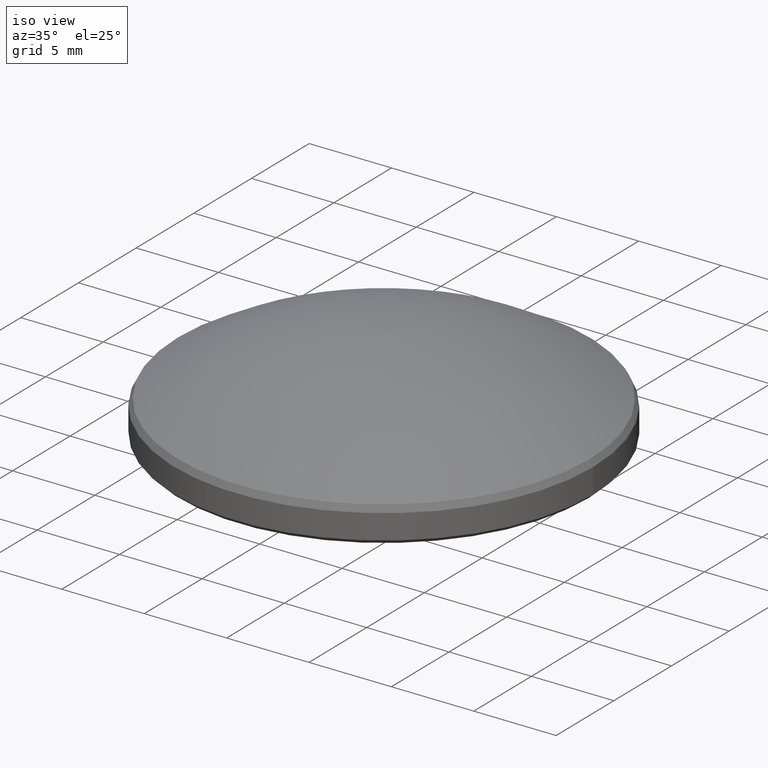
[diagram: clean part render]
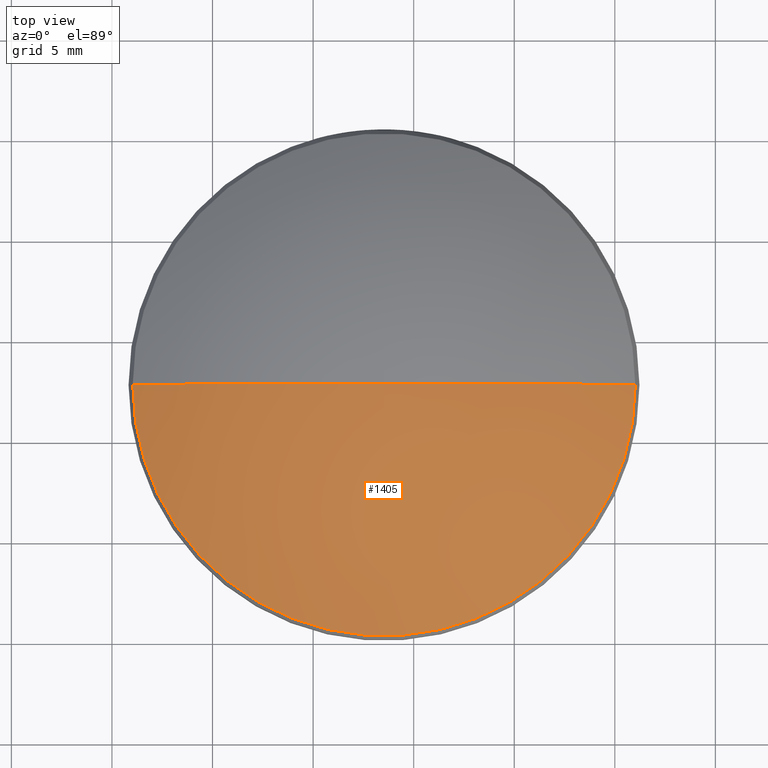
[diagram: tour spotlight — one face highlighted and labeled with its STEP entity id]
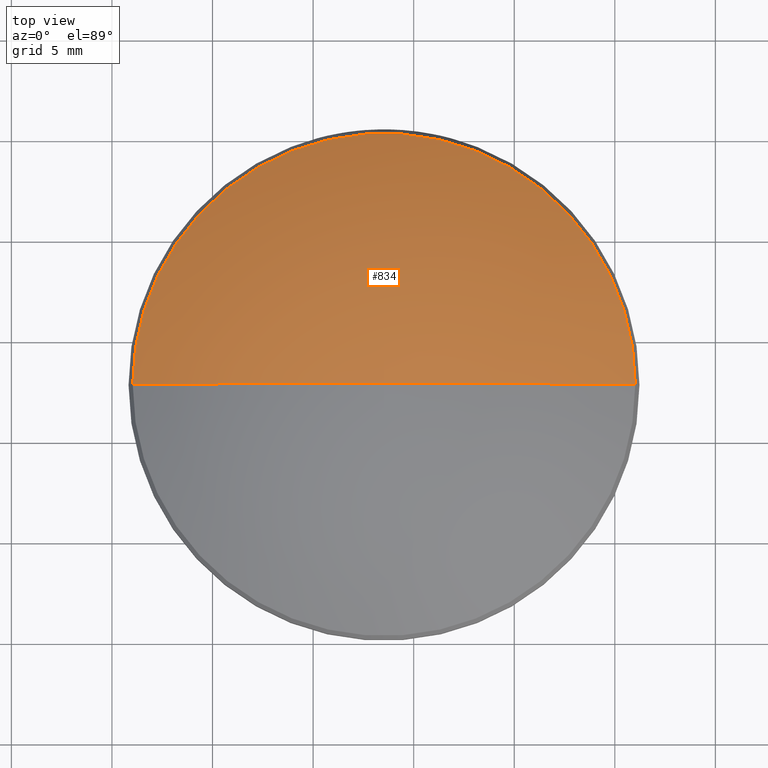
[diagram: tour spotlight — one face highlighted and labeled with its STEP entity id]
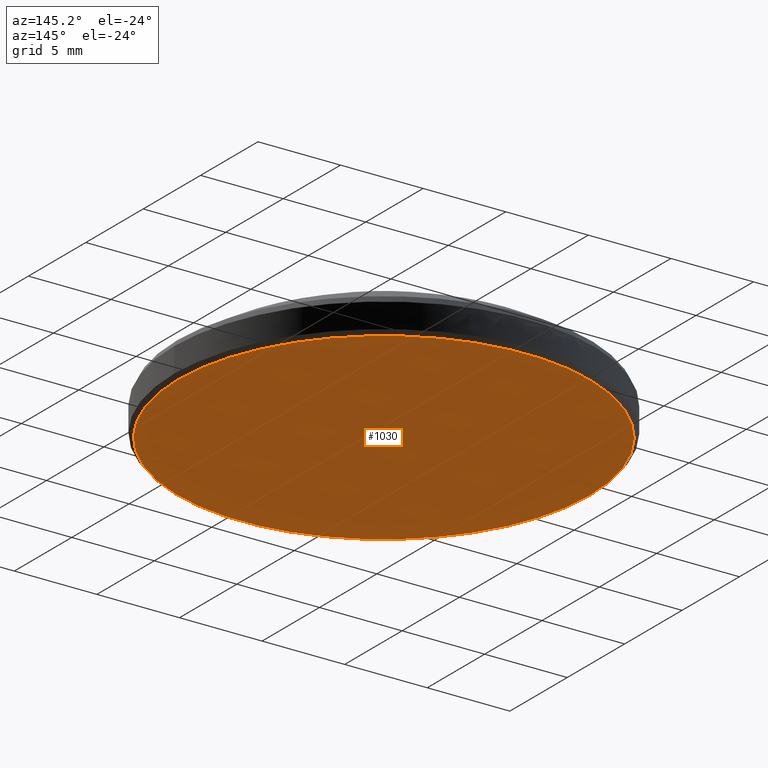
[diagram: tour spotlight — one face highlighted and labeled with its STEP entity id]
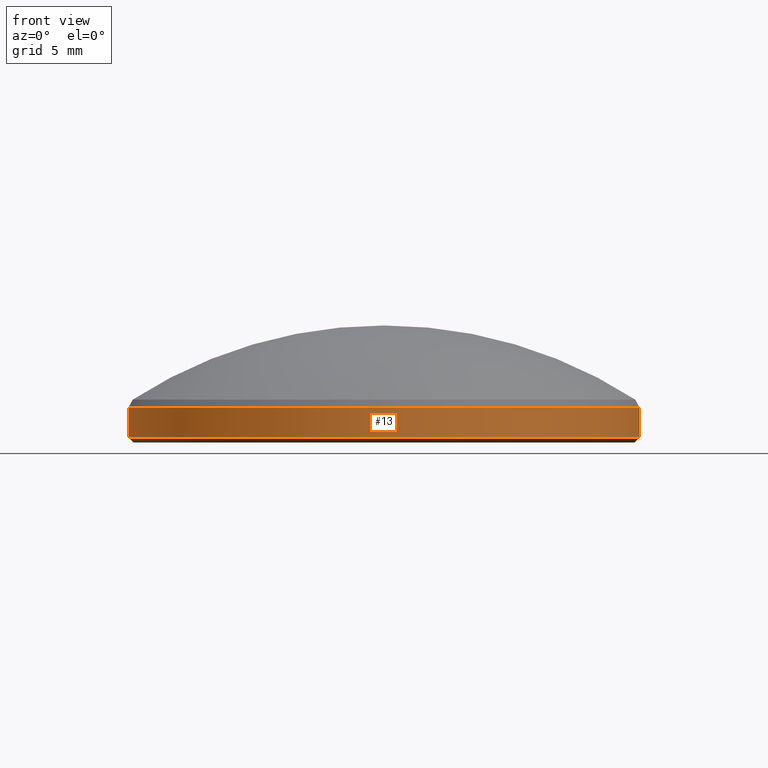
[diagram: tour spotlight — one face highlighted and labeled with its STEP entity id]
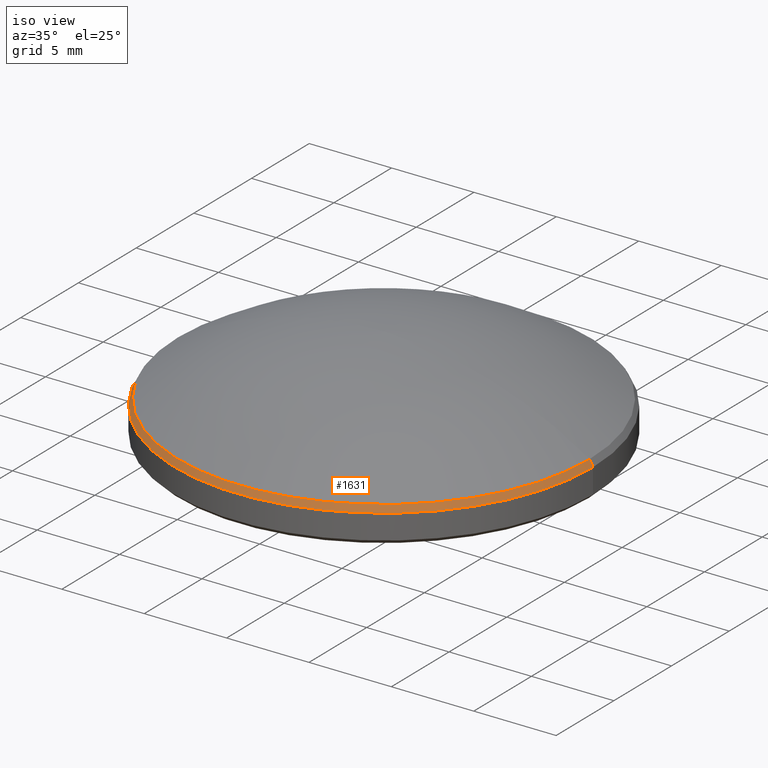
[diagram: tour spotlight — one face highlighted and labeled with its STEP entity id]
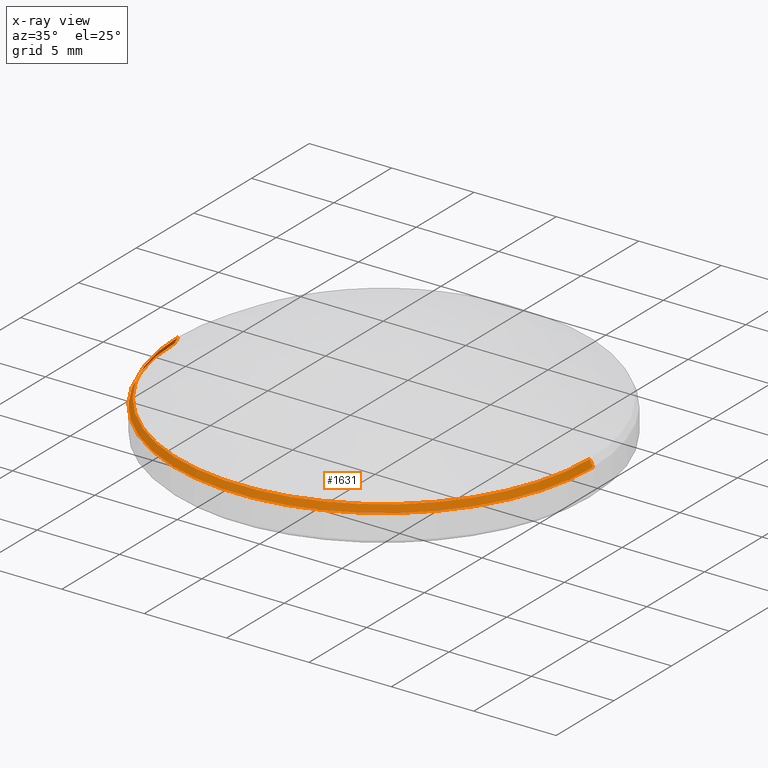
[diagram: x-ray of the same camera — body ghosted, this tour face saturated]
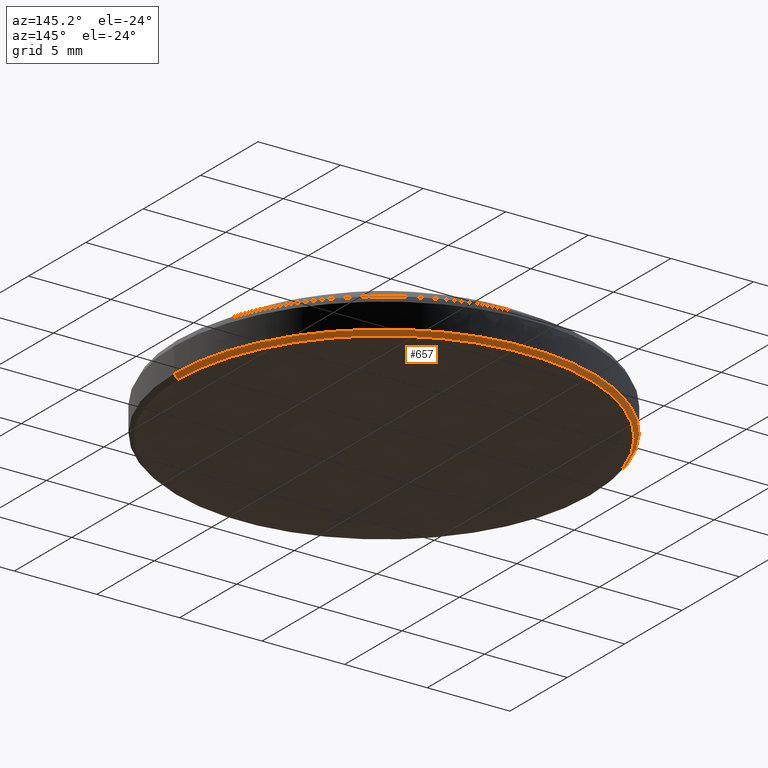
[diagram: tour spotlight — one face highlighted and labeled with its STEP entity id]
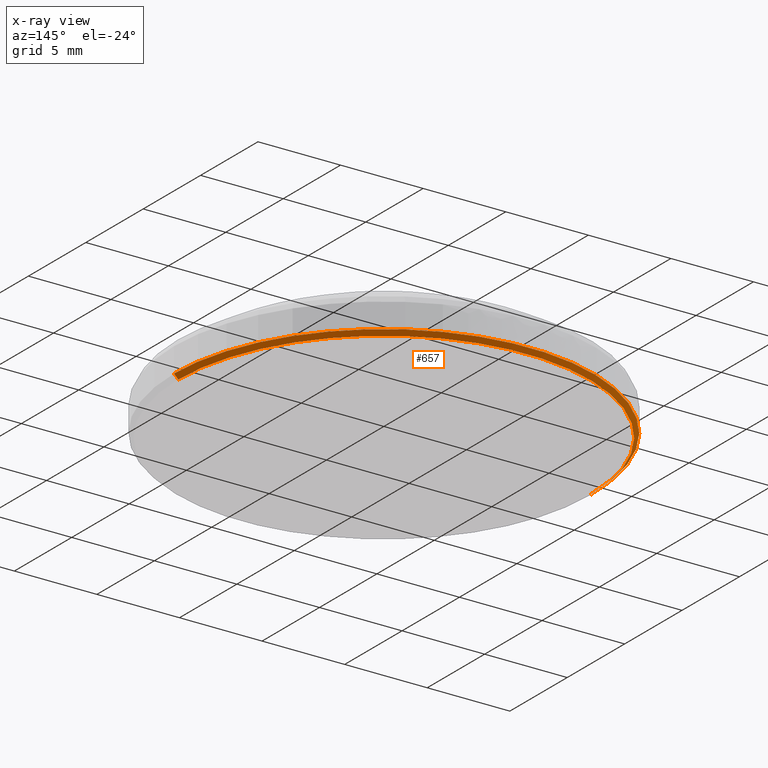
[diagram: x-ray of the same camera — body ghosted, this tour face saturated]
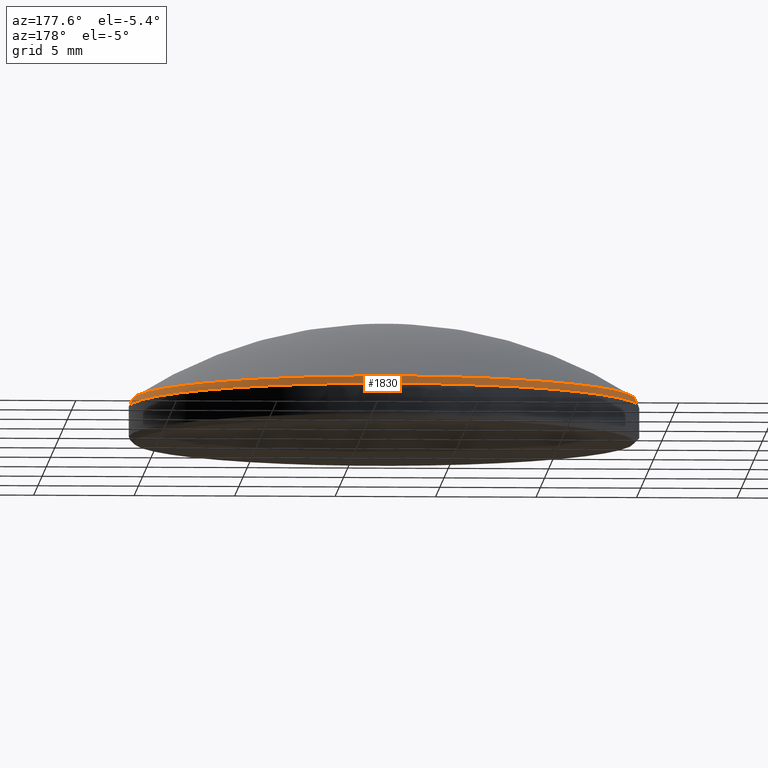
[diagram: tour spotlight — one face highlighted and labeled with its STEP entity id]
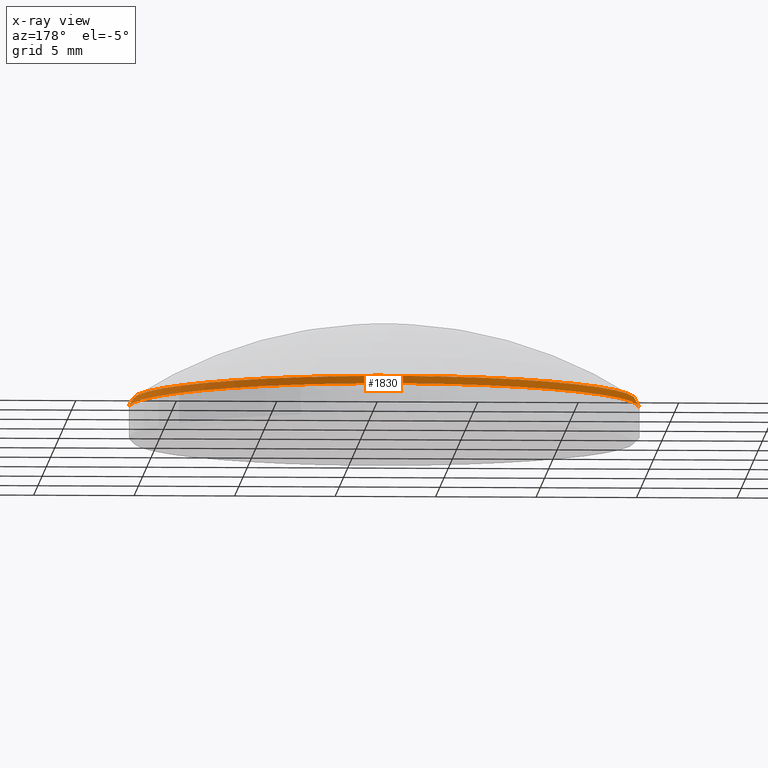
[diagram: x-ray of the same camera — body ghosted, this tour face saturated]
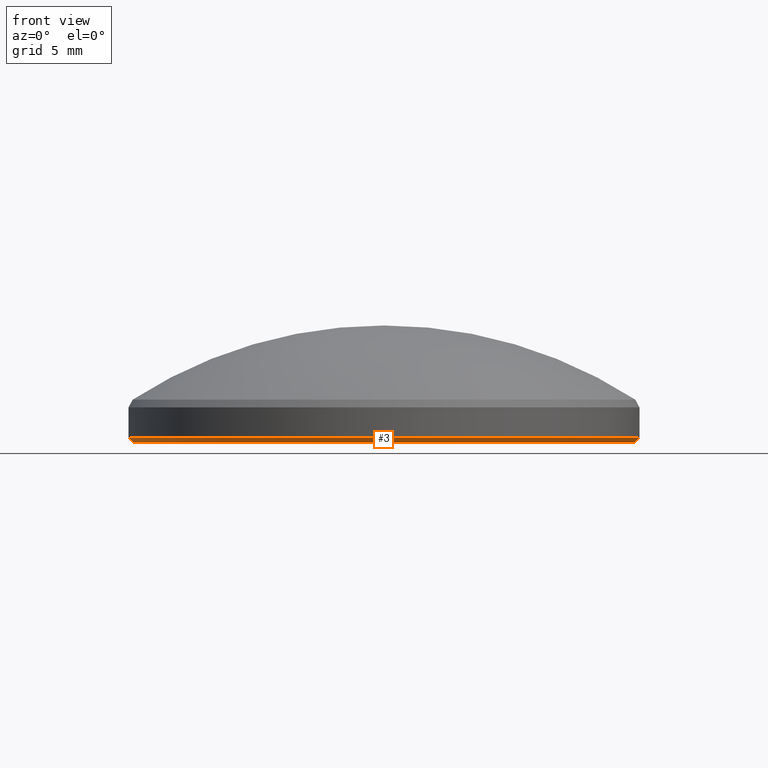
[diagram: tour spotlight — one face highlighted and labeled with its STEP entity id]
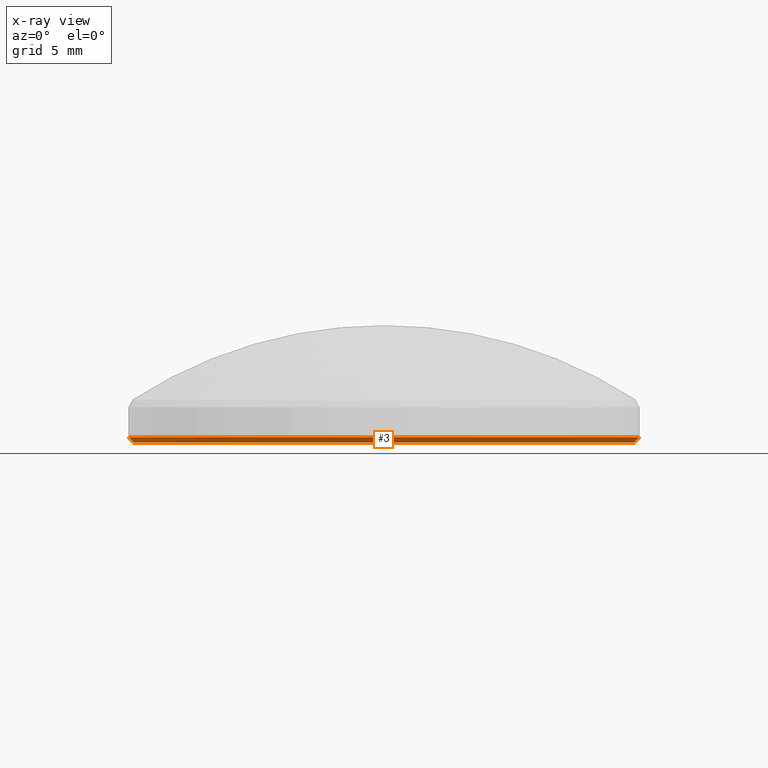
[diagram: x-ray of the same camera — body ghosted, this tour face saturated]
A machine part: a face-by-face anatomy tour. The part has 26 B-rep faces; the first image is the clean iso view, then the 8 largest visible faces are spotlighted one at a time (largest first), each with its STEP entity span.

Face 1 — top view, entity #1405. In plain terms, the highlighted toroidal blend (fillet) surface has major radius 0.0064 mm and minor (blend) radius 23 mm.
Definition (entity closure, byte-faithful):
#120 = DIRECTION ( 'NONE',  ( -1.000000000000000000, 0.0000000000000000000, 0.0000000000000000000 ) ) ;
#137 = DIRECTION ( 'NONE',  ( -1.000000000000000000, 0.0000000000000000000, 0.0000000000000000000 ) ) ;
#165 = CARTESIAN_POINT ( 'NONE',  ( -0.05807175789304482721, 0.9004964437075525518, 1.005609773778499916 ) ) ;
#221 = ORIENTED_EDGE ( 'NONE', *, *, #1796, .F. ) ;
#339 = DIRECTION ( 'NONE',  ( -0.0000000000000000000, -0.0000000000000000000, -1.000000000000000000 ) ) ;
#353 = EDGE_CURVE ( 'NONE', #1370, #1394, #1599, .T. ) ;
#531 = CARTESIAN_POINT ( 'NONE',  ( -0.05807175789304482721, 0.9004964437075525518, 0.1000979977453171077 ) ) ;
#560 = DIRECTION ( 'NONE',  ( -1.000000000000000000, -1.508455196501571676E-16, 0.0000000000000000000 ) ) ;
#617 = FACE_OUTER_BOUND ( 'NONE', #985, .T. ) ;
#700 = CARTESIAN_POINT ( 'NONE',  ( 0.4337728749540302187, 0.9004964437075525518, 0.8605505332690688292 ) ) ;
#726 = CARTESIAN_POINT ( 'NONE',  ( -0.5499163907401198870, 0.9004964437075525518, 0.8605505332690688292 ) ) ;
#804 = TOROIDAL_SURFACE ( 'NONE', #1527, 0.0002517310281242341082, 0.9055118110236218820 ) ;
#985 = EDGE_LOOP ( 'NONE', ( #221, #1212, #1283 ) ) ;
#1104 = AXIS2_PLACEMENT_3D ( 'NONE', #2614, #2197, #560 ) ;
#1212 = ORIENTED_EDGE ( 'NONE', *, *, #2014, .T. ) ;
#1283 = ORIENTED_EDGE ( 'NONE', *, *, #353, .T. ) ;
#1290 = DIRECTION ( 'NONE',  ( 0.0000000000000000000, -1.000000000000000000, 0.0000000000000000000 ) ) ;
#1370 = VERTEX_POINT ( 'NONE', #726 ) ;
#1394 = VERTEX_POINT ( 'NONE', #700 ) ;
#1405 = ADVANCED_FACE ( 'NONE', ( #617 ), #804, .T. ) ;
#1453 = AXIS2_PLACEMENT_3D ( 'NONE', #2587, #1775, #137 ) ;
#1462 = CIRCLE ( 'NONE', #1104, 0.9055118110236218820 ) ;
#1527 = AXIS2_PLACEMENT_3D ( 'NONE', #531, #339, #120 ) ;
#1599 = CIRCLE ( 'NONE', #1453, 0.4918446328470749696 ) ;
#1730 = AXIS2_PLACEMENT_3D ( 'NONE', #2278, #1290, #1920 ) ;
#1775 = DIRECTION ( 'NONE',  ( 0.0000000000000000000, 0.0000000000000000000, 1.000000000000000000 ) ) ;
#1776 = CIRCLE ( 'NONE', #1730, 0.9055118110236218820 ) ;
#1796 = EDGE_CURVE ( 'NONE', #2363, #1394, #1462, .T. ) ;
#1920 = DIRECTION ( 'NONE',  ( 0.0000000000000000000, 0.0000000000000000000, -1.000000000000000000 ) ) ;
#2014 = EDGE_CURVE ( 'NONE', #2363, #1370, #1776, .T. ) ;
#2197 = DIRECTION ( 'NONE',  ( -1.224646799147353207E-16, 1.000000000000000000, 0.0000000000000000000 ) ) ;
#2278 = CARTESIAN_POINT ( 'NONE',  ( -0.05832348892116905742, 0.9004964437075525518, 0.1000979977453171077 ) ) ;
#2363 = VERTEX_POINT ( 'NONE', #165 ) ;
#2587 = CARTESIAN_POINT ( 'NONE',  ( -0.05807175789304482721, 0.9004964437075525518, 0.8605505332690688292 ) ) ;
#2614 = CARTESIAN_POINT ( 'NONE',  ( -0.05782002686492059007, 0.9004964437075525518, 0.1000979977453171077 ) ) ;

Face 2 — top view, entity #834. In plain terms, the highlighted toroidal blend (fillet) surface has major radius 0.0064 mm and minor (blend) radius 23 mm.
Definition (entity closure, byte-faithful):
#34 = FACE_OUTER_BOUND ( 'NONE', #1401, .T. ) ;
#42 = DIRECTION ( 'NONE',  ( -1.000000000000000000, 0.0000000000000000000, 0.0000000000000000000 ) ) ;
#102 = ORIENTED_EDGE ( 'NONE', *, *, #2014, .F. ) ;
#165 = CARTESIAN_POINT ( 'NONE',  ( -0.05807175789304482721, 0.9004964437075525518, 1.005609773778499916 ) ) ;
#176 = DIRECTION ( 'NONE',  ( -1.000000000000000000, 0.0000000000000000000, 0.0000000000000000000 ) ) ;
#304 = CARTESIAN_POINT ( 'NONE',  ( -0.05807175789304482721, 0.9004964437075525518, 0.1000979977453171077 ) ) ;
#355 = ORIENTED_EDGE ( 'NONE', *, *, #2635, .T. ) ;
#402 = CIRCLE ( 'NONE', #585, 0.4918446328470749696 ) ;
#560 = DIRECTION ( 'NONE',  ( -1.000000000000000000, -1.508455196501571676E-16, 0.0000000000000000000 ) ) ;
#585 = AXIS2_PLACEMENT_3D ( 'NONE', #1058, #2496, #42 ) ;
#700 = CARTESIAN_POINT ( 'NONE',  ( 0.4337728749540302187, 0.9004964437075525518, 0.8605505332690688292 ) ) ;
#726 = CARTESIAN_POINT ( 'NONE',  ( -0.5499163907401198870, 0.9004964437075525518, 0.8605505332690688292 ) ) ;
#834 = ADVANCED_FACE ( 'NONE', ( #34 ), #1718, .T. ) ;
#845 = AXIS2_PLACEMENT_3D ( 'NONE', #304, #2013, #176 ) ;
#1058 = CARTESIAN_POINT ( 'NONE',  ( -0.05807175789304482721, 0.9004964437075525518, 0.8605505332690688292 ) ) ;
#1104 = AXIS2_PLACEMENT_3D ( 'NONE', #2614, #2197, #560 ) ;
#1146 = ORIENTED_EDGE ( 'NONE', *, *, #1796, .T. ) ;
#1290 = DIRECTION ( 'NONE',  ( 0.0000000000000000000, -1.000000000000000000, 0.0000000000000000000 ) ) ;
#1370 = VERTEX_POINT ( 'NONE', #726 ) ;
#1394 = VERTEX_POINT ( 'NONE', #700 ) ;
#1401 = EDGE_LOOP ( 'NONE', ( #102, #1146, #355 ) ) ;
#1462 = CIRCLE ( 'NONE', #1104, 0.9055118110236218820 ) ;
#1718 = TOROIDAL_SURFACE ( 'NONE', #845, 0.0002517310281242341082, 0.9055118110236218820 ) ;
#1730 = AXIS2_PLACEMENT_3D ( 'NONE', #2278, #1290, #1920 ) ;
#1776 = CIRCLE ( 'NONE', #1730, 0.9055118110236218820 ) ;
#1796 = EDGE_CURVE ( 'NONE', #2363, #1394, #1462, .T. ) ;
#1920 = DIRECTION ( 'NONE',  ( 0.0000000000000000000, 0.0000000000000000000, -1.000000000000000000 ) ) ;
#2013 = DIRECTION ( 'NONE',  ( -0.0000000000000000000, -0.0000000000000000000, -1.000000000000000000 ) ) ;
#2014 = EDGE_CURVE ( 'NONE', #2363, #1370, #1776, .T. ) ;
#2197 = DIRECTION ( 'NONE',  ( -1.224646799147353207E-16, 1.000000000000000000, 0.0000000000000000000 ) ) ;
#2278 = CARTESIAN_POINT ( 'NONE',  ( -0.05832348892116905742, 0.9004964437075525518, 0.1000979977453171077 ) ) ;
#2363 = VERTEX_POINT ( 'NONE', #165 ) ;
#2496 = DIRECTION ( 'NONE',  ( 0.0000000000000000000, 0.0000000000000000000, 1.000000000000000000 ) ) ;
#2614 = CARTESIAN_POINT ( 'NONE',  ( -0.05782002686492059007, 0.9004964437075525518, 0.1000979977453171077 ) ) ;
#2635 = EDGE_CURVE ( 'NONE', #1394, #1370, #402, .T. ) ;

Face 3 — auxiliary view, entity #1030. In plain terms, the highlighted planar face has unit normal (-0, 0, -1).
Definition (entity closure, byte-faithful):
#118 = AXIS2_PLACEMENT_3D ( 'NONE', #836, #2471, #1039 ) ;
#208 = PLANE ( 'NONE',  #337 ) ;
#305 = DIRECTION ( 'NONE',  ( -1.000000000000000000, 0.0000000000000000000, 0.0000000000000000000 ) ) ;
#337 = AXIS2_PLACEMENT_3D ( 'NONE', #1028, #1815, #2030 ) ;
#527 = DIRECTION ( 'NONE',  ( -0.0000000000000000000, -0.0000000000000000000, -1.000000000000000000 ) ) ;
#651 = CIRCLE ( 'NONE', #118, 0.4901574803149607029 ) ;
#824 = VERTEX_POINT ( 'NONE', #1152 ) ;
#836 = CARTESIAN_POINT ( 'NONE',  ( -0.05807175789304482721, 0.9004964437075525518, 0.7764759155107834321 ) ) ;
#959 = EDGE_CURVE ( 'NONE', #824, #2475, #651, .T. ) ;
#1028 = CARTESIAN_POINT ( 'NONE',  ( -0.05807175789304482721, 1.400496443707552441, 0.7764759155107834321 ) ) ;
#1030 = ADVANCED_FACE ( 'NONE', ( #1189 ), #208, .T. ) ;
#1039 = DIRECTION ( 'NONE',  ( -1.000000000000000000, 0.0000000000000000000, 0.0000000000000000000 ) ) ;
#1117 = ORIENTED_EDGE ( 'NONE', *, *, #959, .T. ) ;
#1152 = CARTESIAN_POINT ( 'NONE',  ( 0.4320857224219158410, 0.9004964437075525518, 0.7764759155107834321 ) ) ;
#1189 = FACE_OUTER_BOUND ( 'NONE', #2349, .T. ) ;
#1473 = CARTESIAN_POINT ( 'NONE',  ( -0.5482292382080055093, 0.9004964437075525518, 0.7764759155107834321 ) ) ;
#1682 = AXIS2_PLACEMENT_3D ( 'NONE', #2380, #527, #305 ) ;
#1815 = DIRECTION ( 'NONE',  ( -0.0000000000000000000, 0.0000000000000000000, -1.000000000000000000 ) ) ;
#1970 = CIRCLE ( 'NONE', #1682, 0.4901574803149607029 ) ;
#2030 = DIRECTION ( 'NONE',  ( -1.000000000000000000, 0.0000000000000000000, 0.0000000000000000000 ) ) ;
#2221 = EDGE_CURVE ( 'NONE', #2475, #824, #1970, .T. ) ;
#2349 = EDGE_LOOP ( 'NONE', ( #1117, #2430 ) ) ;
#2380 = CARTESIAN_POINT ( 'NONE',  ( -0.05807175789304482721, 0.9004964437075525518, 0.7764759155107834321 ) ) ;
#2430 = ORIENTED_EDGE ( 'NONE', *, *, #2221, .T. ) ;
#2471 = DIRECTION ( 'NONE',  ( -0.0000000000000000000, -0.0000000000000000000, -1.000000000000000000 ) ) ;
#2475 = VERTEX_POINT ( 'NONE', #1473 ) ;

Face 4 — front view, entity #13. In plain terms, the highlighted cylindrical surface (partial cylindrical patch) has radius 12.7 mm, axis along (-0, -0, -1).
Definition (entity closure, byte-faithful):
#13 = ADVANCED_FACE ( 'NONE', ( #963 ), #1925, .T. ) ;
#33 = VERTEX_POINT ( 'NONE', #1535 ) ;
#35 = CARTESIAN_POINT ( 'NONE',  ( -0.05807175789304482721, 0.9004964437075525518, 0.8453735533060587892 ) ) ;
#105 = VERTEX_POINT ( 'NONE', #504 ) ;
#115 = EDGE_CURVE ( 'NONE', #1503, #2266, #428, .T. ) ;
#171 = CARTESIAN_POINT ( 'NONE',  ( -0.5580717578930448619, 0.9004964437075525518, 0.7863184351958227847 ) ) ;
#219 = ORIENTED_EDGE ( 'NONE', *, *, #604, .T. ) ;
#251 = VECTOR ( 'NONE', #643, 39.37007874015748143 ) ;
#256 = ORIENTED_EDGE ( 'NONE', *, *, #2534, .T. ) ;
#390 = CARTESIAN_POINT ( 'NONE',  ( -0.5580717578930448619, 0.9004964437075525518, 0.8453735533060587892 ) ) ;
#428 = LINE ( 'NONE', #1358, #1381 ) ;
#504 = CARTESIAN_POINT ( 'NONE',  ( 0.4419282421069552491, 0.9004964437075525518, 0.8453735533060587892 ) ) ;
#579 = AXIS2_PLACEMENT_3D ( 'NONE', #2254, #2492, #2267 ) ;
#595 = CIRCLE ( 'NONE', #579, 0.5000000000000001110 ) ;
#604 = EDGE_CURVE ( 'NONE', #2266, #33, #595, .T. ) ;
#643 = DIRECTION ( 'NONE',  ( -0.0000000000000000000, -0.0000000000000000000, -1.000000000000000000 ) ) ;
#961 = DIRECTION ( 'NONE',  ( -0.0000000000000000000, -0.0000000000000000000, -1.000000000000000000 ) ) ;
#963 = FACE_OUTER_BOUND ( 'NONE', #1241, .T. ) ;
#1047 = AXIS2_PLACEMENT_3D ( 'NONE', #2342, #1937, #2334 ) ;
#1110 = LINE ( 'NONE', #1659, #251 ) ;
#1241 = EDGE_LOOP ( 'NONE', ( #1531, #256, #1811, #219 ) ) ;
#1358 = CARTESIAN_POINT ( 'NONE',  ( -0.5580717578930448619, 0.9004964437075525518, 0.7764759155107834321 ) ) ;
#1381 = VECTOR ( 'NONE', #961, 39.37007874015748143 ) ;
#1503 = VERTEX_POINT ( 'NONE', #390 ) ;
#1519 = DIRECTION ( 'NONE',  ( 1.000000000000000000, 0.0000000000000000000, 0.0000000000000000000 ) ) ;
#1531 = ORIENTED_EDGE ( 'NONE', *, *, #1959, .F. ) ;
#1535 = CARTESIAN_POINT ( 'NONE',  ( 0.4419282421069552491, 0.9004964437075525518, 0.7863184351958227847 ) ) ;
#1579 = AXIS2_PLACEMENT_3D ( 'NONE', #35, #2549, #1519 ) ;
#1659 = CARTESIAN_POINT ( 'NONE',  ( 0.4419282421069552491, 0.9004964437075525518, 0.7764759155107834321 ) ) ;
#1811 = ORIENTED_EDGE ( 'NONE', *, *, #115, .T. ) ;
#1925 = CYLINDRICAL_SURFACE ( 'NONE', #1047, 0.5000000000000001110 ) ;
#1937 = DIRECTION ( 'NONE',  ( -0.0000000000000000000, -0.0000000000000000000, -1.000000000000000000 ) ) ;
#1959 = EDGE_CURVE ( 'NONE', #105, #33, #1110, .T. ) ;
#2029 = CIRCLE ( 'NONE', #1579, 0.5000000000000001110 ) ;
#2254 = CARTESIAN_POINT ( 'NONE',  ( -0.05807175789304482721, 0.9004964437075525518, 0.7863184351958227847 ) ) ;
#2266 = VERTEX_POINT ( 'NONE', #171 ) ;
#2267 = DIRECTION ( 'NONE',  ( -1.000000000000000000, 0.0000000000000000000, 0.0000000000000000000 ) ) ;
#2334 = DIRECTION ( 'NONE',  ( -1.000000000000000000, 0.0000000000000000000, 0.0000000000000000000 ) ) ;
#2342 = CARTESIAN_POINT ( 'NONE',  ( -0.05807175789304482721, 0.9004964437075525518, 0.7764759155107834321 ) ) ;
#2492 = DIRECTION ( 'NONE',  ( 0.0000000000000000000, 0.0000000000000000000, 1.000000000000000000 ) ) ;
#2534 = EDGE_CURVE ( 'NONE', #105, #1503, #2029, .T. ) ;
#2549 = DIRECTION ( 'NONE',  ( -0.0000000000000000000, -0.0000000000000000000, -1.000000000000000000 ) ) ;

Face 5 — iso view, entity #1631. An x-ray twin of the same camera follows (body ghosted, this face saturated) — the face is partly hidden behind the body. In plain terms, the highlighted conical surface has half-angle 28.251 deg.
Definition (entity closure, byte-faithful):
#35 = CARTESIAN_POINT ( 'NONE',  ( -0.05807175789304482721, 0.9004964437075525518, 0.8453735533060587892 ) ) ;
#105 = VERTEX_POINT ( 'NONE', #504 ) ;
#134 = ORIENTED_EDGE ( 'NONE', *, *, #353, .F. ) ;
#137 = DIRECTION ( 'NONE',  ( -1.000000000000000000, 0.0000000000000000000, 0.0000000000000000000 ) ) ;
#217 = CONICAL_SURFACE ( 'NONE', #273, 0.5000000000000001110, 0.4930801394895298340 ) ;
#273 = AXIS2_PLACEMENT_3D ( 'NONE', #1651, #1621, #2062 ) ;
#331 = ORIENTED_EDGE ( 'NONE', *, *, #1641, .T. ) ;
#353 = EDGE_CURVE ( 'NONE', #1370, #1394, #1599, .T. ) ;
#390 = CARTESIAN_POINT ( 'NONE',  ( -0.5580717578930448619, 0.9004964437075525518, 0.8453735533060587892 ) ) ;
#504 = CARTESIAN_POINT ( 'NONE',  ( 0.4419282421069552491, 0.9004964437075525518, 0.8453735533060587892 ) ) ;
#552 = LINE ( 'NONE', #1196, #613 ) ;
#613 = VECTOR ( 'NONE', #1400, 39.37007874015748854 ) ;
#700 = CARTESIAN_POINT ( 'NONE',  ( 0.4337728749540302187, 0.9004964437075525518, 0.8605505332690688292 ) ) ;
#726 = CARTESIAN_POINT ( 'NONE',  ( -0.5499163907401198870, 0.9004964437075525518, 0.8605505332690688292 ) ) ;
#1048 = DIRECTION ( 'NONE',  ( -0.4733413596814614599, 0.0000000000000000000, -0.8808790820622914852 ) ) ;
#1196 = CARTESIAN_POINT ( 'NONE',  ( 0.4419282421069552491, 0.9004964437075525518, 0.8453735533060587892 ) ) ;
#1370 = VERTEX_POINT ( 'NONE', #726 ) ;
#1394 = VERTEX_POINT ( 'NONE', #700 ) ;
#1400 = DIRECTION ( 'NONE',  ( 0.4733413596814614599, 5.796759810379577318E-17, -0.8808790820622914852 ) ) ;
#1453 = AXIS2_PLACEMENT_3D ( 'NONE', #2587, #1775, #137 ) ;
#1503 = VERTEX_POINT ( 'NONE', #390 ) ;
#1519 = DIRECTION ( 'NONE',  ( 1.000000000000000000, 0.0000000000000000000, 0.0000000000000000000 ) ) ;
#1555 = EDGE_CURVE ( 'NONE', #1394, #105, #552, .T. ) ;
#1579 = AXIS2_PLACEMENT_3D ( 'NONE', #35, #2549, #1519 ) ;
#1599 = CIRCLE ( 'NONE', #1453, 0.4918446328470749696 ) ;
#1620 = ORIENTED_EDGE ( 'NONE', *, *, #2534, .F. ) ;
#1621 = DIRECTION ( 'NONE',  ( -0.0000000000000000000, -0.0000000000000000000, -1.000000000000000000 ) ) ;
#1631 = ADVANCED_FACE ( 'NONE', ( #2365 ), #217, .T. ) ;
#1641 = EDGE_CURVE ( 'NONE', #1370, #1503, #2260, .T. ) ;
#1651 = CARTESIAN_POINT ( 'NONE',  ( -0.05807175789304482721, 0.9004964437075525518, 0.8453735533060587892 ) ) ;
#1755 = EDGE_LOOP ( 'NONE', ( #2479, #134, #331, #1620 ) ) ;
#1775 = DIRECTION ( 'NONE',  ( 0.0000000000000000000, 0.0000000000000000000, 1.000000000000000000 ) ) ;
#2029 = CIRCLE ( 'NONE', #1579, 0.5000000000000001110 ) ;
#2039 = CARTESIAN_POINT ( 'NONE',  ( -0.5580717578930448619, 0.9004964437075525518, 0.8453735533060587892 ) ) ;
#2062 = DIRECTION ( 'NONE',  ( -1.000000000000000000, 0.0000000000000000000, 0.0000000000000000000 ) ) ;
#2107 = VECTOR ( 'NONE', #1048, 39.37007874015748854 ) ;
#2260 = LINE ( 'NONE', #2039, #2107 ) ;
#2365 = FACE_OUTER_BOUND ( 'NONE', #1755, .T. ) ;
#2479 = ORIENTED_EDGE ( 'NONE', *, *, #1555, .F. ) ;
#2534 = EDGE_CURVE ( 'NONE', #105, #1503, #2029, .T. ) ;
#2549 = DIRECTION ( 'NONE',  ( -0.0000000000000000000, -0.0000000000000000000, -1.000000000000000000 ) ) ;
#2587 = CARTESIAN_POINT ( 'NONE',  ( -0.05807175789304482721, 0.9004964437075525518, 0.8605505332690688292 ) ) ;

Face 6 — auxiliary view, entity #657. An x-ray twin of the same camera follows (body ghosted, this face saturated) — the face is partly hidden behind the body. In plain terms, the highlighted conical surface has half-angle 45 deg.
Definition (entity closure, byte-faithful):
#33 = VERTEX_POINT ( 'NONE', #1535 ) ;
#171 = CARTESIAN_POINT ( 'NONE',  ( -0.5580717578930448619, 0.9004964437075525518, 0.7863184351958227847 ) ) ;
#200 = CARTESIAN_POINT ( 'NONE',  ( -0.5482292382080055093, 0.9004964437075525518, 0.7764759155107834321 ) ) ;
#220 = VECTOR ( 'NONE', #2054, 39.37007874015748854 ) ;
#305 = DIRECTION ( 'NONE',  ( -1.000000000000000000, 0.0000000000000000000, 0.0000000000000000000 ) ) ;
#384 = CIRCLE ( 'NONE', #1645, 0.5000000000000001110 ) ;
#496 = DIRECTION ( 'NONE',  ( 0.0000000000000000000, 0.0000000000000000000, 1.000000000000000000 ) ) ;
#505 = VECTOR ( 'NONE', #1914, 39.37007874015748854 ) ;
#527 = DIRECTION ( 'NONE',  ( -0.0000000000000000000, -0.0000000000000000000, -1.000000000000000000 ) ) ;
#657 = ADVANCED_FACE ( 'NONE', ( #1129 ), #1533, .T. ) ;
#702 = LINE ( 'NONE', #899, #505 ) ;
#824 = VERTEX_POINT ( 'NONE', #1152 ) ;
#889 = DIRECTION ( 'NONE',  ( 1.000000000000000000, 0.0000000000000000000, 0.0000000000000000000 ) ) ;
#899 = CARTESIAN_POINT ( 'NONE',  ( 0.4320857224219158410, 0.9004964437075525518, 0.7764759155107834321 ) ) ;
#1129 = FACE_OUTER_BOUND ( 'NONE', #1652, .T. ) ;
#1152 = CARTESIAN_POINT ( 'NONE',  ( 0.4320857224219158410, 0.9004964437075525518, 0.7764759155107834321 ) ) ;
#1188 = ORIENTED_EDGE ( 'NONE', *, *, #1468, .F. ) ;
#1233 = ORIENTED_EDGE ( 'NONE', *, *, #1624, .T. ) ;
#1363 = DIRECTION ( 'NONE',  ( -1.000000000000000000, 0.0000000000000000000, 0.0000000000000000000 ) ) ;
#1366 = LINE ( 'NONE', #200, #220 ) ;
#1468 = EDGE_CURVE ( 'NONE', #33, #2266, #384, .T. ) ;
#1473 = CARTESIAN_POINT ( 'NONE',  ( -0.5482292382080055093, 0.9004964437075525518, 0.7764759155107834321 ) ) ;
#1495 = ORIENTED_EDGE ( 'NONE', *, *, #2221, .F. ) ;
#1506 = CARTESIAN_POINT ( 'NONE',  ( -0.05807175789304482721, 0.9004964437075525518, 0.7764759155107834321 ) ) ;
#1533 = CONICAL_SURFACE ( 'NONE', #2082, 0.4901574803149607029, 0.7853981633974482790 ) ;
#1535 = CARTESIAN_POINT ( 'NONE',  ( 0.4419282421069552491, 0.9004964437075525518, 0.7863184351958227847 ) ) ;
#1550 = CARTESIAN_POINT ( 'NONE',  ( -0.05807175789304482721, 0.9004964437075525518, 0.7863184351958227847 ) ) ;
#1624 = EDGE_CURVE ( 'NONE', #2475, #2266, #1366, .T. ) ;
#1645 = AXIS2_PLACEMENT_3D ( 'NONE', #1550, #2397, #1363 ) ;
#1652 = EDGE_LOOP ( 'NONE', ( #1495, #1233, #1188, #2513 ) ) ;
#1682 = AXIS2_PLACEMENT_3D ( 'NONE', #2380, #527, #305 ) ;
#1914 = DIRECTION ( 'NONE',  ( 0.7071067811865474617, 0.0000000000000000000, 0.7071067811865474617 ) ) ;
#1970 = CIRCLE ( 'NONE', #1682, 0.4901574803149607029 ) ;
#2054 = DIRECTION ( 'NONE',  ( -0.7071067811865474617, 8.659560562354932858E-17, 0.7071067811865474617 ) ) ;
#2082 = AXIS2_PLACEMENT_3D ( 'NONE', #1506, #496, #889 ) ;
#2098 = EDGE_CURVE ( 'NONE', #824, #33, #702, .T. ) ;
#2221 = EDGE_CURVE ( 'NONE', #2475, #824, #1970, .T. ) ;
#2266 = VERTEX_POINT ( 'NONE', #171 ) ;
#2380 = CARTESIAN_POINT ( 'NONE',  ( -0.05807175789304482721, 0.9004964437075525518, 0.7764759155107834321 ) ) ;
#2397 = DIRECTION ( 'NONE',  ( 0.0000000000000000000, 0.0000000000000000000, 1.000000000000000000 ) ) ;
#2475 = VERTEX_POINT ( 'NONE', #1473 ) ;
#2513 = ORIENTED_EDGE ( 'NONE', *, *, #2098, .F. ) ;

Face 7 — auxiliary view, entity #1830. An x-ray twin of the same camera follows (body ghosted, this face saturated) — the face is partly hidden behind the body. In plain terms, the highlighted conical surface has half-angle 28.251 deg.
Definition (entity closure, byte-faithful):
#42 = DIRECTION ( 'NONE',  ( -1.000000000000000000, 0.0000000000000000000, 0.0000000000000000000 ) ) ;
#105 = VERTEX_POINT ( 'NONE', #504 ) ;
#113 = DIRECTION ( 'NONE',  ( -0.0000000000000000000, -0.0000000000000000000, -1.000000000000000000 ) ) ;
#363 = DIRECTION ( 'NONE',  ( -1.000000000000000000, 0.0000000000000000000, 0.0000000000000000000 ) ) ;
#390 = CARTESIAN_POINT ( 'NONE',  ( -0.5580717578930448619, 0.9004964437075525518, 0.8453735533060587892 ) ) ;
#402 = CIRCLE ( 'NONE', #585, 0.4918446328470749696 ) ;
#504 = CARTESIAN_POINT ( 'NONE',  ( 0.4419282421069552491, 0.9004964437075525518, 0.8453735533060587892 ) ) ;
#552 = LINE ( 'NONE', #1196, #613 ) ;
#585 = AXIS2_PLACEMENT_3D ( 'NONE', #1058, #2496, #42 ) ;
#613 = VECTOR ( 'NONE', #1400, 39.37007874015748854 ) ;
#700 = CARTESIAN_POINT ( 'NONE',  ( 0.4337728749540302187, 0.9004964437075525518, 0.8605505332690688292 ) ) ;
#701 = AXIS2_PLACEMENT_3D ( 'NONE', #2622, #1758, #363 ) ;
#726 = CARTESIAN_POINT ( 'NONE',  ( -0.5499163907401198870, 0.9004964437075525518, 0.8605505332690688292 ) ) ;
#749 = EDGE_CURVE ( 'NONE', #1503, #105, #1315, .T. ) ;
#1009 = EDGE_LOOP ( 'NONE', ( #2640, #2469, #1457, #2303 ) ) ;
#1011 = AXIS2_PLACEMENT_3D ( 'NONE', #1554, #113, #1964 ) ;
#1048 = DIRECTION ( 'NONE',  ( -0.4733413596814614599, 0.0000000000000000000, -0.8808790820622914852 ) ) ;
#1058 = CARTESIAN_POINT ( 'NONE',  ( -0.05807175789304482721, 0.9004964437075525518, 0.8605505332690688292 ) ) ;
#1196 = CARTESIAN_POINT ( 'NONE',  ( 0.4419282421069552491, 0.9004964437075525518, 0.8453735533060587892 ) ) ;
#1237 = FACE_OUTER_BOUND ( 'NONE', #1009, .T. ) ;
#1315 = CIRCLE ( 'NONE', #1011, 0.5000000000000001110 ) ;
#1370 = VERTEX_POINT ( 'NONE', #726 ) ;
#1394 = VERTEX_POINT ( 'NONE', #700 ) ;
#1400 = DIRECTION ( 'NONE',  ( 0.4733413596814614599, 5.796759810379577318E-17, -0.8808790820622914852 ) ) ;
#1457 = ORIENTED_EDGE ( 'NONE', *, *, #749, .F. ) ;
#1503 = VERTEX_POINT ( 'NONE', #390 ) ;
#1554 = CARTESIAN_POINT ( 'NONE',  ( -0.05807175789304482721, 0.9004964437075525518, 0.8453735533060587892 ) ) ;
#1555 = EDGE_CURVE ( 'NONE', #1394, #105, #552, .T. ) ;
#1612 = CONICAL_SURFACE ( 'NONE', #701, 0.5000000000000001110, 0.4930801394895298340 ) ;
#1641 = EDGE_CURVE ( 'NONE', #1370, #1503, #2260, .T. ) ;
#1758 = DIRECTION ( 'NONE',  ( -0.0000000000000000000, -0.0000000000000000000, -1.000000000000000000 ) ) ;
#1830 = ADVANCED_FACE ( 'NONE', ( #1237 ), #1612, .T. ) ;
#1964 = DIRECTION ( 'NONE',  ( 1.000000000000000000, 0.0000000000000000000, 0.0000000000000000000 ) ) ;
#2039 = CARTESIAN_POINT ( 'NONE',  ( -0.5580717578930448619, 0.9004964437075525518, 0.8453735533060587892 ) ) ;
#2107 = VECTOR ( 'NONE', #1048, 39.37007874015748854 ) ;
#2260 = LINE ( 'NONE', #2039, #2107 ) ;
#2303 = ORIENTED_EDGE ( 'NONE', *, *, #1641, .F. ) ;
#2469 = ORIENTED_EDGE ( 'NONE', *, *, #1555, .T. ) ;
#2496 = DIRECTION ( 'NONE',  ( 0.0000000000000000000, 0.0000000000000000000, 1.000000000000000000 ) ) ;
#2622 = CARTESIAN_POINT ( 'NONE',  ( -0.05807175789304482721, 0.9004964437075525518, 0.8453735533060587892 ) ) ;
#2635 = EDGE_CURVE ( 'NONE', #1394, #1370, #402, .T. ) ;
#2640 = ORIENTED_EDGE ( 'NONE', *, *, #2635, .F. ) ;

Face 8 — front view, entity #3. An x-ray twin of the same camera follows (body ghosted, this face saturated) — the face is partly hidden behind the body. In plain terms, the highlighted conical surface has half-angle 45 deg.
Definition (entity closure, byte-faithful):
#3 = ADVANCED_FACE ( 'NONE', ( #199 ), #2240, .T. ) ;
#26 = ORIENTED_EDGE ( 'NONE', *, *, #959, .F. ) ;
#33 = VERTEX_POINT ( 'NONE', #1535 ) ;
#118 = AXIS2_PLACEMENT_3D ( 'NONE', #836, #2471, #1039 ) ;
#171 = CARTESIAN_POINT ( 'NONE',  ( -0.5580717578930448619, 0.9004964437075525518, 0.7863184351958227847 ) ) ;
#199 = FACE_OUTER_BOUND ( 'NONE', #1192, .T. ) ;
#200 = CARTESIAN_POINT ( 'NONE',  ( -0.5482292382080055093, 0.9004964437075525518, 0.7764759155107834321 ) ) ;
#220 = VECTOR ( 'NONE', #2054, 39.37007874015748854 ) ;
#267 = DIRECTION ( 'NONE',  ( 0.0000000000000000000, 0.0000000000000000000, 1.000000000000000000 ) ) ;
#505 = VECTOR ( 'NONE', #1914, 39.37007874015748854 ) ;
#579 = AXIS2_PLACEMENT_3D ( 'NONE', #2254, #2492, #2267 ) ;
#595 = CIRCLE ( 'NONE', #579, 0.5000000000000001110 ) ;
#604 = EDGE_CURVE ( 'NONE', #2266, #33, #595, .T. ) ;
#651 = CIRCLE ( 'NONE', #118, 0.4901574803149607029 ) ;
#702 = LINE ( 'NONE', #899, #505 ) ;
#824 = VERTEX_POINT ( 'NONE', #1152 ) ;
#836 = CARTESIAN_POINT ( 'NONE',  ( -0.05807175789304482721, 0.9004964437075525518, 0.7764759155107834321 ) ) ;
#899 = CARTESIAN_POINT ( 'NONE',  ( 0.4320857224219158410, 0.9004964437075525518, 0.7764759155107834321 ) ) ;
#959 = EDGE_CURVE ( 'NONE', #824, #2475, #651, .T. ) ;
#1039 = DIRECTION ( 'NONE',  ( -1.000000000000000000, 0.0000000000000000000, 0.0000000000000000000 ) ) ;
#1152 = CARTESIAN_POINT ( 'NONE',  ( 0.4320857224219158410, 0.9004964437075525518, 0.7764759155107834321 ) ) ;
#1192 = EDGE_LOOP ( 'NONE', ( #1275, #26, #2332, #1566 ) ) ;
#1275 = ORIENTED_EDGE ( 'NONE', *, *, #1624, .F. ) ;
#1366 = LINE ( 'NONE', #200, #220 ) ;
#1473 = CARTESIAN_POINT ( 'NONE',  ( -0.5482292382080055093, 0.9004964437075525518, 0.7764759155107834321 ) ) ;
#1509 = DIRECTION ( 'NONE',  ( 1.000000000000000000, 0.0000000000000000000, 0.0000000000000000000 ) ) ;
#1535 = CARTESIAN_POINT ( 'NONE',  ( 0.4419282421069552491, 0.9004964437075525518, 0.7863184351958227847 ) ) ;
#1566 = ORIENTED_EDGE ( 'NONE', *, *, #604, .F. ) ;
#1624 = EDGE_CURVE ( 'NONE', #2475, #2266, #1366, .T. ) ;
#1914 = DIRECTION ( 'NONE',  ( 0.7071067811865474617, 0.0000000000000000000, 0.7071067811865474617 ) ) ;
#2042 = AXIS2_PLACEMENT_3D ( 'NONE', #2525, #267, #1509 ) ;
#2054 = DIRECTION ( 'NONE',  ( -0.7071067811865474617, 8.659560562354932858E-17, 0.7071067811865474617 ) ) ;
#2098 = EDGE_CURVE ( 'NONE', #824, #33, #702, .T. ) ;
#2240 = CONICAL_SURFACE ( 'NONE', #2042, 0.4901574803149607029, 0.7853981633974482790 ) ;
#2254 = CARTESIAN_POINT ( 'NONE',  ( -0.05807175789304482721, 0.9004964437075525518, 0.7863184351958227847 ) ) ;
#2266 = VERTEX_POINT ( 'NONE', #171 ) ;
#2267 = DIRECTION ( 'NONE',  ( -1.000000000000000000, 0.0000000000000000000, 0.0000000000000000000 ) ) ;
#2332 = ORIENTED_EDGE ( 'NONE', *, *, #2098, .T. ) ;
#2471 = DIRECTION ( 'NONE',  ( -0.0000000000000000000, -0.0000000000000000000, -1.000000000000000000 ) ) ;
#2475 = VERTEX_POINT ( 'NONE', #1473 ) ;
#2492 = DIRECTION ( 'NONE',  ( 0.0000000000000000000, 0.0000000000000000000, 1.000000000000000000 ) ) ;
#2525 = CARTESIAN_POINT ( 'NONE',  ( -0.05807175789304482721, 0.9004964437075525518, 0.7764759155107834321 ) ) ;